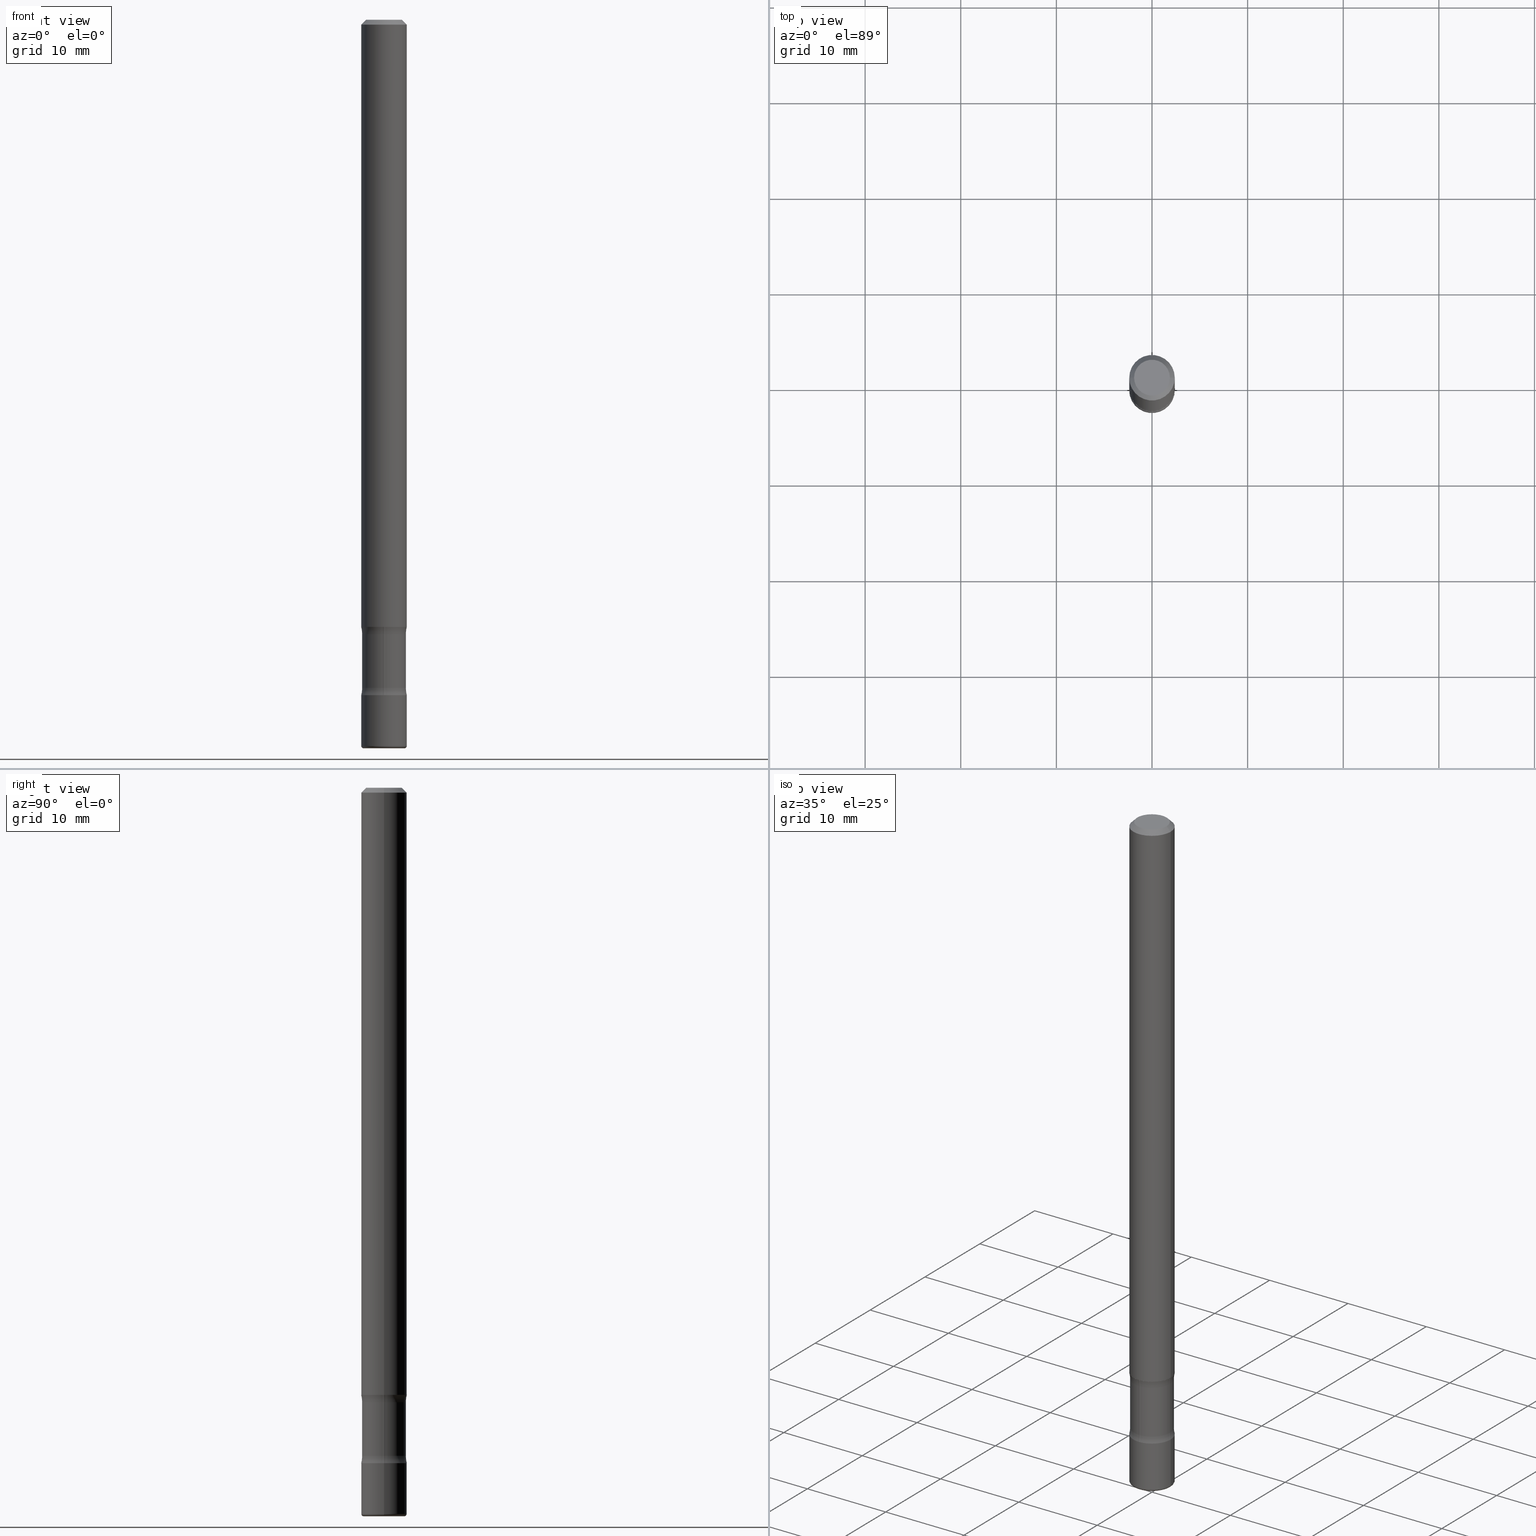
[diagram: canonical four-view strip — front | top / right | iso, engineering-drawing reading convention]
A machine part, canonical four-view strip (front | top / right | iso — engineering-drawing reading convention). The complete STEP part file that produces these views, byte-faithful:
ISO-10303-21;
HEADER;
FILE_DESCRIPTION (( 'STEP AP203' ),
    '1' );
FILE_NAME ('32816.STEP',
    '2023-03-11T07:03:43',
    ( '' ),
    ( '' ),
    'SwSTEP 2.0',
    'SolidWorks 2022',
    '' );
FILE_SCHEMA (( 'CONFIG_CONTROL_DESIGN' ));
ENDSEC;

DATA;
#1 = ORIENTED_EDGE ( 'NONE', *, *, #187, .F. ) ;
#2 = CARTESIAN_POINT ( 'NONE',  ( -0.08999999999999996891, -8.128941975895664340E-15, -2.530388114452858606 ) ) ;
#3 = DIRECTION ( 'NONE',  ( -6.982962677686265922E-15, -1.000000000000000000, 0.000000000000000000 ) ) ;
#4 = APPROVAL_DATE_TIME ( #57, #626 ) ;
#5 = ADVANCED_FACE ( 'NONE', ( #309 ), #383, .F. ) ;
#6 = ADVANCED_FACE ( 'NONE', ( #747 ), #697, .F. ) ;
#7 = DIRECTION ( 'NONE',  ( -1.000000000000000000, 6.982962677686265922E-15, -4.876176775795935793E-29 ) ) ;
#8 = CARTESIAN_POINT ( 'NONE',  ( 7.336406418555409790E-29, -1.047444401652943635E-14, -3.000000000000000444 ) ) ;
#9 = CIRCLE ( 'NONE', #421, 0.08999999999999996891 ) ;
#10 = VERTEX_POINT ( 'NONE', #379 ) ;
#11 = CIRCLE ( 'NONE', #302, 0.07437500000000001055 ) ;
#12 = LINE ( 'NONE', #251, #269 ) ;
#13 = CYLINDRICAL_SURFACE ( 'NONE', #571, 0.09375000000000002776 ) ;
#14 = PERSON_AND_ORGANIZATION_ROLE ( 'creator' ) ;
#15 = ORIENTED_EDGE ( 'NONE', *, *, #613, .F. ) ;
#16 = DIRECTION ( 'NONE',  ( 6.982962677686265922E-15, 1.000000000000000000, -5.827942386483760744E-15 ) ) ;
#17 = DIRECTION ( 'NONE',  ( 1.000000000000000000, -6.982962677686269077E-15, 0.000000000000000000 ) ) ;
#18 = EDGE_CURVE ( 'NONE', #607, #78, #72, .T. ) ;
#19 = AXIS2_PLACEMENT_3D ( 'NONE', #256, #446, #7 ) ;
#20 = AXIS2_PLACEMENT_3D ( 'NONE', #793, #287, #477 ) ;
#21 = FACE_OUTER_BOUND ( 'NONE', #30, .T. ) ;
#22 = DIRECTION ( 'NONE',  ( 1.000000000000000000, -6.982962677686266711E-15, 4.876176775795935232E-29 ) ) ;
#23 = ADVANCED_FACE ( 'NONE', ( #757 ), #540, .F. ) ;
#24 = FACE_OUTER_BOUND ( 'NONE', #563, .T. ) ;
#25 = CARTESIAN_POINT ( 'NONE',  ( 4.890937612370276662E-31, -6.982962677686296539E-17, -0.02000000000000001776 ) ) ;
#26 = CIRCLE ( 'NONE', #91, 0.09375000000000001388 ) ;
#27 = DIRECTION ( 'NONE',  ( 6.982962677686265133E-15, 1.000000000000000000, -6.070773319253918263E-15 ) ) ;
#28 = CIRCLE ( 'NONE', #519, 0.1250000000000000000 ) ;
#29 = AXIS2_PLACEMENT_3D ( 'NONE', #521, #585, #579 ) ;
#30 = EDGE_LOOP ( 'NONE', ( #314, #280, #183, #493 ) ) ;
#31 = PERSON_AND_ORGANIZATION_ROLE ( 'design_supplier' ) ;
#32 = ADVANCED_FACE ( 'NONE', ( #636 ), #181, .F. ) ;
#33 = ORIENTED_EDGE ( 'NONE', *, *, #499, .T. ) ;
#34 = COORDINATED_UNIVERSAL_TIME_OFFSET ( 5, 0, .BEHIND. ) ;
#35 =( NAMED_UNIT ( * ) SI_UNIT ( $, .STERADIAN. ) SOLID_ANGLE_UNIT ( ) );
#36 = DIRECTION ( 'NONE',  ( -2.445468806185136597E-29, 3.491481338843145583E-15, 1.000000000000000000 ) ) ;
#37 = DIRECTION ( 'NONE',  ( 6.982962677686265133E-15, 1.000000000000000000, -6.070773319253919052E-15 ) ) ;
#38 = CARTESIAN_POINT ( 'NONE',  ( 6.187985201436090676E-29, -8.834802881642648397E-15, -2.530388114452858606 ) ) ;
#39 = VERTEX_POINT ( 'NONE', #681 ) ;
#40 = AXIS2_PLACEMENT_3D ( 'NONE', #238, #434, #665 ) ;
#41 = VERTEX_POINT ( 'NONE', #120 ) ;
#42 = CONICAL_SURFACE ( 'NONE', #410, 0.09374999999999968081, 0.7853981633974480570 ) ;
#43 = DIRECTION ( 'NONE',  ( -2.445468806185136597E-29, 3.491481338843145583E-15, 1.000000000000000000 ) ) ;
#44 = CARTESIAN_POINT ( 'NONE',  ( 6.284666409918254957E-16, 0.08999999999999111489, -2.530388114452859050 ) ) ;
#45 = ORIENTED_EDGE ( 'NONE', *, *, #92, .F. ) ;
#46 = DIRECTION ( 'NONE',  ( 2.438088387897960049E-29, -3.491481338843145188E-15, -1.000000000000000000 ) ) ;
#47 = DIRECTION ( 'NONE',  ( -2.445468806185136597E-29, 3.491481338843145583E-15, 1.000000000000000000 ) ) ;
#48 = CARTESIAN_POINT ( 'NONE',  ( 1.036083544242599444E-27, -1.479252710587075397E-13, -42.36748150792652723 ) ) ;
#49 = VERTEX_POINT ( 'NONE', #168 ) ;
#50 = EDGE_CURVE ( 'NONE', #662, #345, #669, .T. ) ;
#51 = CARTESIAN_POINT ( 'NONE',  ( -0.07374999999999967693, 5.499083108677911763E-16, -3.723527850031178556E-30 ) ) ;
#52 = ORIENTED_EDGE ( 'NONE', *, *, #721, .T. ) ;
#53 = ORIENTED_EDGE ( 'NONE', *, *, #613, .T. ) ;
#54 = DIRECTION ( 'NONE',  ( -2.445468806185136877E-29, 3.491481338843145188E-15, 1.000000000000000000 ) ) ;
#55 = DIRECTION ( 'NONE',  ( -2.445468806185136597E-29, 3.491481338843145583E-15, 1.000000000000000000 ) ) ;
#56 = CIRCLE ( 'NONE', #686, 0.09375000000000001388 ) ;
#57 = DATE_AND_TIME ( #185, #268 ) ;
#58 = DIRECTION ( 'NONE',  ( 7.105427357601001859E-15, 1.000000000000000000, -3.491481338843145583E-15 ) ) ;
#59 = DIRECTION ( 'NONE',  ( 2.445468806185136597E-29, -3.491481338843145583E-15, -1.000000000000000000 ) ) ;
#60 = DIRECTION ( 'NONE',  ( 1.000000000000000000, -6.982962677686265922E-15, 4.876176775795935793E-29 ) ) ;
#61 = DIRECTION ( 'NONE',  ( 7.105427357601001859E-15, 1.000000000000000000, -3.491481338843145583E-15 ) ) ;
#62 = VECTOR ( 'NONE', #667, 39.37007874015748143 ) ;
#63 = CARTESIAN_POINT ( 'NONE',  ( 6.801337843762102328E-29, -9.710507899590557993E-15, -2.781200000000000561 ) ) ;
#64 = DIRECTION ( 'NONE',  ( 1.000000000000000000, 0.000000000000000000, 0.000000000000000000 ) ) ;
#65 = ORIENTED_EDGE ( 'NONE', *, *, #261, .F. ) ;
#66 = DIRECTION ( 'NONE',  ( -1.000000000000000000, 7.105427357601003436E-15, 0.000000000000000000 ) ) ;
#67 = CARTESIAN_POINT ( 'NONE',  ( 1.501336975702614357E-15, 0.2149999999999903932, -2.750811885547142843 ) ) ;
#68 = EDGE_CURVE ( 'NONE', #41, #39, #570, .T. ) ;
#69 = ORIENTED_EDGE ( 'NONE', *, *, #780, .T. ) ;
#70 = DIRECTION ( 'NONE',  ( -6.982962677686266711E-15, -1.000000000000000000, 3.491481338843145583E-15 ) ) ;
#71 = CARTESIAN_POINT ( 'NONE',  ( 7.336406418555409790E-29, -1.047444401652943635E-14, -3.000000000000000444 ) ) ;
#72 = CIRCLE ( 'NONE', #123, 0.1250000000000000000 ) ;
#73 = AXIS2_PLACEMENT_3D ( 'NONE', #8, #258, #517 ) ;
#74 = AXIS2_PLACEMENT_3D ( 'NONE', #334, #83, #587 ) ;
#75 = CARTESIAN_POINT ( 'NONE',  ( -1.475007069520816911E-15, -0.2150000000000087952, -2.530388114452858161 ) ) ;
#76 = DIRECTION ( 'NONE',  ( -1.000000000000000000, 6.982962677686265922E-15, -4.883557194083112340E-29 ) ) ;
#77 = DIRECTION ( 'NONE',  ( 1.000000000000000000, -6.982962677686261189E-15, 0.000000000000000000 ) ) ;
#78 = VERTEX_POINT ( 'NONE', #112 ) ;
#79 = ADVANCED_FACE ( 'NONE', ( #595 ), #214, .F. ) ;
#80 = AXIS2_PLACEMENT_3D ( 'NONE', #690, #61, #694 ) ;
#81 = VERTEX_POINT ( 'NONE', #44 ) ;
#82 = DIRECTION ( 'NONE',  ( -1.000000000000000000, 6.982962677686267499E-15, 0.000000000000000000 ) ) ;
#83 = DIRECTION ( 'NONE',  ( 2.450156014720728202E-29, -3.484768989440836268E-15, -1.000000000000000000 ) ) ;
#84 = EDGE_CURVE ( 'NONE', #205, #81, #158, .T. ) ;
#85 = VERTEX_POINT ( 'NONE', #500 ) ;
#86 = DATE_AND_TIME ( #788, #657 ) ;
#87 = CARTESIAN_POINT ( 'NONE',  ( 7.311951730493558245E-29, -1.043952920314100628E-14, -2.990000000000000213 ) ) ;
#88 = CARTESIAN_POINT ( 'NONE',  ( 2.011961467678875039E-17, -1.046537582866243864E-14, -2.997402767769051568 ) ) ;
#89 = EDGE_CURVE ( 'NONE', #85, #673, #316, .T. ) ;
#90 = VERTEX_POINT ( 'NONE', #671 ) ;
#91 = AXIS2_PLACEMENT_3D ( 'NONE', #664, #55, #237 ) ;
#92 = EDGE_CURVE ( 'NONE', #81, #604, #305, .T. ) ;
#93 = CIRCLE ( 'NONE', #20, 0.07374999999999967693 ) ;
#94 = ORIENTED_EDGE ( 'NONE', *, *, #771, .T. ) ;
#95 = ORIENTED_EDGE ( 'NONE', *, *, #590, .T. ) ;
#96 = LINE ( 'NONE', #417, #62 ) ;
#97 = PERSON_AND_ORGANIZATION_ROLE ( 'creator' ) ;
#98 = EDGE_LOOP ( 'NONE', ( #453, #169, #689, #69 ) ) ;
#99 = FACE_OUTER_BOUND ( 'NONE', #782, .T. ) ;
#100 = EDGE_LOOP ( 'NONE', ( #608, #650, #145, #359 ) ) ;
#101 = DIRECTION ( 'NONE',  ( 2.450156014720728202E-29, -3.484768989440836268E-15, -1.000000000000000000 ) ) ;
#102 = CARTESIAN_POINT ( 'NONE',  ( 6.113672015462842613E-29, -8.728703347107864943E-15, -2.500000000000000000 ) ) ;
#103 = EDGE_LOOP ( 'NONE', ( #640, #658, #367, #113 ) ) ;
#104 = DATE_AND_TIME ( #312, #751 ) ;
#105 = DIRECTION ( 'NONE',  ( 2.450156014720728202E-29, -3.484768989440836268E-15, -1.000000000000000000 ) ) ;
#106 = DIRECTION ( 'NONE',  ( 1.000000000000000000, -6.982962677686267499E-15, 0.000000000000000000 ) ) ;
#107 = ORIENTED_EDGE ( 'NONE', *, *, #734, .T. ) ;
#108 = DIRECTION ( 'NONE',  ( -1.000000000000000000, 6.982962677686265922E-15, -4.876176775795935793E-29 ) ) ;
#109 = VECTOR ( 'NONE', #307, 39.37007874015748143 ) ;
#110 = LOCAL_TIME ( 2, 3, 43.00000000000000000, #195 ) ;
#111 = EDGE_CURVE ( 'NONE', #412, #49, #148, .T. ) ;
#112 = CARTESIAN_POINT ( 'NONE',  ( -6.303082535451916913E-16, -0.09000000000000961398, -2.750811885547141955 ) ) ;
#113 = ORIENTED_EDGE ( 'NONE', *, *, #549, .F. ) ;
#114 = CARTESIAN_POINT ( 'NONE',  ( 0.07374999999999967693, -6.094815207017949365E-16, 3.931526600461590341E-30 ) ) ;
#115 = DIRECTION ( 'NONE',  ( -2.445468806185136597E-29, 3.491481338843145583E-15, 1.000000000000000000 ) ) ;
#116 = ORIENTED_EDGE ( 'NONE', *, *, #631, .F. ) ;
#117 = DIRECTION ( 'NONE',  ( 1.000000000000000000, -6.982962677686277755E-15, 0.000000000000000000 ) ) ;
#118 = DIRECTION ( 'NONE',  ( 6.982962677686265922E-15, 1.000000000000000000, -5.827942386483760744E-15 ) ) ;
#119 = CARTESIAN_POINT ( 'NONE',  ( 6.186809593825325615E-29, -8.836486418652693410E-15, -2.530388114452858606 ) ) ;
#120 = CARTESIAN_POINT ( 'NONE',  ( 0.09374999999999968081, -7.130013140679418184E-16, -0.02000000000000001776 ) ) ;
#121 = FACE_OUTER_BOUND ( 'NONE', #416, .T. ) ;
#122 = ADVANCED_FACE ( 'NONE', ( #562 ), #171, .F. ) ;
#123 = AXIS2_PLACEMENT_3D ( 'NONE', #736, #575, #558 ) ;
#124 = DIRECTION ( 'NONE',  ( 1.000000000000000000, -6.860497997771530774E-15, 4.840881082196246121E-29 ) ) ;
#125 = DIRECTION ( 'NONE',  ( 6.982962677686265922E-15, 1.000000000000000000, -3.484768989440836268E-15 ) ) ;
#126 = VECTOR ( 'NONE', #365, 39.37007874015748143 ) ;
#127 = ORIENTED_EDGE ( 'NONE', *, *, #526, .T. ) ;
#128 = AXIS2_PLACEMENT_3D ( 'NONE', #527, #464, #465 ) ;
#129 = DIRECTION ( 'NONE',  ( -2.438088387897960049E-29, 3.491481338843145188E-15, 1.000000000000000000 ) ) ;
#130 = DIRECTION ( 'NONE',  ( -2.445468806185136597E-29, 3.491481338843145583E-15, 1.000000000000000000 ) ) ;
#131 = ADVANCED_FACE ( 'NONE', ( #362 ), #551, .T. ) ;
#132 = CARTESIAN_POINT ( 'NONE',  ( 0.09375000000000005551, -1.109418195417409300E-14, -2.990000000000000213 ) ) ;
#133 = APPROVAL_ROLE ( '' ) ;
#134 = DIRECTION ( 'NONE',  ( -2.445468806185136597E-29, 3.491481338843145583E-15, 1.000000000000000000 ) ) ;
#135 = CARTESIAN_POINT ( 'NONE',  ( 6.113672015462842613E-29, -8.728703347107864943E-15, -2.500000000000000000 ) ) ;
#136 = CARTESIAN_POINT ( 'NONE',  ( -0.09374999999999984734, 6.661338147750928396E-16, -4.611501647113966288E-30 ) ) ;
#137 = VERTEX_POINT ( 'NONE', #347 ) ;
#138 = DIRECTION ( 'NONE',  ( -6.982962677686265922E-15, -1.000000000000000000, 0.000000000000000000 ) ) ;
#139 = AXIS2_PLACEMENT_3D ( 'NONE', #615, #785, #37 ) ;
#140 = EDGE_CURVE ( 'NONE', #239, #85, #508, .T. ) ;
#141 = CARTESIAN_POINT ( 'NONE',  ( 1.036083544242599444E-27, -1.479252710587075397E-13, -42.36748150792652723 ) ) ;
#142 = CIRCLE ( 'NONE', #73, 0.07437500000000001055 ) ;
#143 = CARTESIAN_POINT ( 'NONE',  ( 6.801337843762102328E-29, -9.710507899590557993E-15, -2.781200000000000561 ) ) ;
#144 = DIRECTION ( 'NONE',  ( 2.450156014720727922E-29, -3.484768989440836268E-15, -1.000000000000000000 ) ) ;
#145 = ORIENTED_EDGE ( 'NONE', *, *, #208, .F. ) ;
#146 = PLANE ( 'NONE',  #128 ) ;
#147 = ADVANCED_FACE ( 'NONE', ( #796 ), #769, .F. ) ;
#148 = CIRCLE ( 'NONE', #336, 0.09375000000000001388 ) ;
#149 = TOROIDAL_SURFACE ( 'NONE', #772, 0.2149999999999999967, 0.1250000000000000000 ) ;
#150 = ORIENTED_EDGE ( 'NONE', *, *, #518, .F. ) ;
#151 = DATE_AND_TIME ( #154, #174 ) ;
#152 = CARTESIAN_POINT ( 'NONE',  ( 0.08999999999999998279, -9.357169988099628315E-15, -2.500000000000000000 ) ) ;
#153 = ORIENTED_EDGE ( 'NONE', *, *, #485, .T. ) ;
#154 = CALENDAR_DATE ( 2023, 11, 3 ) ;
#155 = ORIENTED_EDGE ( 'NONE', *, *, #701, .T. ) ;
#156 = EDGE_CURVE ( 'NONE', #39, #41, #257, .T. ) ;
#157 = ORIENTED_EDGE ( 'NONE', *, *, #249, .T. ) ;
#158 = CIRCLE ( 'NONE', #644, 0.08999999999999996891 ) ;
#159 = ORIENTED_EDGE ( 'NONE', *, *, #68, .T. ) ;
#160 = VECTOR ( 'NONE', #270, 39.37007874015748143 ) ;
#161 = CARTESIAN_POINT ( 'NONE',  ( 6.187985201436090676E-29, -8.834802881642648397E-15, -2.530388114452858606 ) ) ;
#162 = AXIS2_PLACEMENT_3D ( 'NONE', #135, #511, #569 ) ;
#163 = ORIENTED_EDGE ( 'NONE', *, *, #264, .F. ) ;
#164 = PLANE ( 'NONE',  #202 ) ;
#165 = VERTEX_POINT ( 'NONE', #409 ) ;
#166 = ADVANCED_FACE ( 'NONE', ( #329 ), #761, .F. ) ;
#167 = DIRECTION ( 'NONE',  ( -2.445468806185136597E-29, 3.491481338843145583E-15, 1.000000000000000000 ) ) ;
#168 = CARTESIAN_POINT ( 'NONE',  ( 6.546527510331487394E-16, 0.09374999999999128475, -2.500000000000000000 ) ) ;
#169 = ORIENTED_EDGE ( 'NONE', *, *, #266, .F. ) ;
#170 = VERTEX_POINT ( 'NONE', #173 ) ;
#171 = CONICAL_SURFACE ( 'NONE', #617, 1127.411546571505596, 1.535889741755010807 ) ;
#172 = CIRCLE ( 'NONE', #474, 0.08999999999999999667 ) ;
#173 = CARTESIAN_POINT ( 'NONE',  ( 0.08999999999999996891, -9.463269522634413348E-15, -2.530388114452858606 ) ) ;
#174 = LOCAL_TIME ( 2, 3, 43.00000000000000000, #778 ) ;
#175 = DIRECTION ( 'NONE',  ( 1.000000000000000000, -6.982962677686272233E-15, 0.000000000000000000 ) ) ;
#176 = ORIENTED_EDGE ( 'NONE', *, *, #692, .F. ) ;
#177 = CYLINDRICAL_SURFACE ( 'NONE', #289, 0.09375000000000002776 ) ;
#178 = DIRECTION ( 'NONE',  ( 6.982962677686265133E-15, 1.000000000000000000, -6.070773319253919052E-15 ) ) ;
#179 = DIRECTION ( 'NONE',  ( 1.000000000000000000, -6.982962677686261189E-15, 0.000000000000000000 ) ) ;
#180 = EDGE_CURVE ( 'NONE', #170, #673, #9, .T. ) ;
#181 = PLANE ( 'NONE',  #354 ) ;
#182 = DIRECTION ( 'NONE',  ( -2.445468806185136597E-29, 3.491481338843145583E-15, 1.000000000000000000 ) ) ;
#183 = ORIENTED_EDGE ( 'NONE', *, *, #717, .T. ) ;
#184 = DIRECTION ( 'NONE',  ( 1.000000000000000000, -6.982962677686272233E-15, 0.000000000000000000 ) ) ;
#185 = CALENDAR_DATE ( 2023, 11, 3 ) ;
#186 = ORIENTED_EDGE ( 'NONE', *, *, #89, .T. ) ;
#187 = EDGE_CURVE ( 'NONE', #49, #412, #528, .T. ) ;
#188 = AXIS2_PLACEMENT_3D ( 'NONE', #556, #616, #106 ) ;
#189 = DIRECTION ( 'NONE',  ( -2.445468806185136597E-29, 3.491481338843145583E-15, 1.000000000000000000 ) ) ;
#190 = AXIS2_PLACEMENT_3D ( 'NONE', #578, #76, #3 ) ;
#191 = APPROVAL_STATUS ( 'not_yet_approved' ) ;
#192 = DIRECTION ( 'NONE',  ( 1.000000000000000000, -6.982962677686264344E-15, 4.883557194083111780E-29 ) ) ;
#193 = CARTESIAN_POINT ( 'NONE',  ( -6.431716872910129461E-16, -0.09375000000000968670, -2.781200000000000561 ) ) ;
#194 = CARTESIAN_POINT ( 'NONE',  ( -6.174448197993643227E-16, -0.09000000000001044664, -2.997402767769051124 ) ) ;
#195 = COORDINATED_UNIVERSAL_TIME_OFFSET ( 5, 0, .BEHIND. ) ;
#196 = ORIENTED_EDGE ( 'NONE', *, *, #499, .F. ) ;
#197 = DIRECTION ( 'NONE',  ( 1.000000000000000000, -6.982962677686275388E-15, 0.000000000000000000 ) ) ;
#198 = CARTESIAN_POINT ( 'NONE',  ( 0.2149999999999999689, -1.033613985734519511E-14, -2.530388114452858606 ) ) ;
#199 = EDGE_CURVE ( 'NONE', #165, #260, #726, .T. ) ;
#200 = EDGE_LOOP ( 'NONE', ( #515, #510, #652, #420 ) ) ;
#201 = DIRECTION ( 'NONE',  ( 1.000000000000000000, -6.982962677686265922E-15, 4.876176775795935793E-29 ) ) ;
#202 = AXIS2_PLACEMENT_3D ( 'NONE', #232, #346, #482 ) ;
#203 = ADVANCED_FACE ( 'NONE', ( #415 ), #423, .T. ) ;
#204 = AXIS2_PLACEMENT_3D ( 'NONE', #639, #371, #695 ) ;
#205 = VERTEX_POINT ( 'NONE', #547 ) ;
#206 = CARTESIAN_POINT ( 'NONE',  ( 0.2149999999999999967, -1.110574534075832283E-14, -2.750811885547142399 ) ) ;
#207 = DIRECTION ( 'NONE',  ( -2.445468806185136597E-29, 3.491481338843145583E-15, 1.000000000000000000 ) ) ;
#208 = EDGE_CURVE ( 'NONE', #675, #743, #26, .T. ) ;
#209 = EDGE_CURVE ( 'NONE', #414, #39, #539, .T. ) ;
#210 = MANIFOLD_SOLID_BREP ( 'Body-Move/Copy2[4]', #325 ) ;
#211 = ORIENTED_EDGE ( 'NONE', *, *, #424, .F. ) ;
#212 = ORIENTED_EDGE ( 'NONE', *, *, #224, .T. ) ;
#213 = ADVANCED_FACE ( 'NONE', ( #357 ), #164, .T. ) ;
#214 = TOROIDAL_SURFACE ( 'NONE', #473, 0.2149999999999999689, 0.1250000000000000278 ) ;
#215 = AXIS2_PLACEMENT_3D ( 'NONE', #198, #573, #405 ) ;
#216 = ORIENTED_EDGE ( 'NONE', *, *, #364, .F. ) ;
#217 = PRODUCT_DEFINITION_FORMATION_WITH_SPECIFIED_SOURCE ( 'ANY', '', #441, .NOT_KNOWN. ) ;
#218 = CC_DESIGN_PERSON_AND_ORGANIZATION_ASSIGNMENT ( #248, #14, ( #255 ) ) ;
#219 = ORIENTED_EDGE ( 'NONE', *, *, #84, .T. ) ;
#220 = ORIENTED_EDGE ( 'NONE', *, *, #507, .F. ) ;
#221 = CARTESIAN_POINT ( 'NONE',  ( 0.000000000000000000, 0.000000000000000000, 0.000000000000000000 ) ) ;
#222 = DIRECTION ( 'NONE',  ( 6.982962677686265922E-15, 1.000000000000000000, -3.484768989440835873E-15 ) ) ;
#223 = ORIENTED_EDGE ( 'NONE', *, *, #249, .F. ) ;
#224 = EDGE_CURVE ( 'NONE', #137, #10, #713, .T. ) ;
#225 = ORIENTED_EDGE ( 'NONE', *, *, #692, .T. ) ;
#226 = AXIS2_PLACEMENT_3D ( 'NONE', #691, #317, #755 ) ;
#227 = AXIS2_PLACEMENT_3D ( 'NONE', #555, #745, #64 ) ;
#228 = APPROVAL_PERSON_ORGANIZATION ( #468, #759, #712 ) ;
#229 = VECTOR ( 'NONE', #531, 39.37007874015748143 ) ;
#230 = ORIENTED_EDGE ( 'NONE', *, *, #382, .T. ) ;
#231 = ADVANCED_FACE ( 'NONE', ( #479 ), #42, .T. ) ;
#232 = CARTESIAN_POINT ( 'NONE',  ( 6.801337843762102328E-29, -9.710507899590557993E-15, -2.781200000000000561 ) ) ;
#233 = CARTESIAN_POINT ( 'NONE',  ( 6.113672015462842613E-29, -8.728703347107864943E-15, -2.500000000000000000 ) ) ;
#234 = ORIENTED_EDGE ( 'NONE', *, *, #199, .F. ) ;
#235 = ADVANCED_FACE ( 'NONE', ( #715 ), #460, .F. ) ;
#236 = FACE_OUTER_BOUND ( 'NONE', #306, .T. ) ;
#237 = DIRECTION ( 'NONE',  ( 1.000000000000000000, -6.982962677686261189E-15, 0.000000000000000000 ) ) ;
#238 = CARTESIAN_POINT ( 'NONE',  ( 0.000000000000000000, 0.000000000000000000, 0.000000000000000000 ) ) ;
#239 = VERTEX_POINT ( 'NONE', #609 ) ;
#240 = DIRECTION ( 'NONE',  ( 1.000000000000000000, -6.982962677686266711E-15, 4.876176775795936353E-29 ) ) ;
#241 = VERTEX_POINT ( 'NONE', #752 ) ;
#242 = DIRECTION ( 'NONE',  ( 2.450156014720728202E-29, -3.484768989440836268E-15, -1.000000000000000000 ) ) ;
#243 = AXIS2_PLACEMENT_3D ( 'NONE', #798, #343, #222 ) ;
#244 = CIRCLE ( 'NONE', #619, 0.07374999999999967693 ) ;
#245 = DIRECTION ( 'NONE',  ( -2.438088387897960049E-29, 3.491481338843145188E-15, 1.000000000000000000 ) ) ;
#246 = DIRECTION ( 'NONE',  ( 1.000000000000000000, -6.982962677686269866E-15, 4.883557194083114022E-29 ) ) ;
#247 = DESIGN_CONTEXT ( 'detailed design', #295, 'design' ) ;
#248 = PERSON_AND_ORGANIZATION ( #448, #544 ) ;
#249 = EDGE_CURVE ( 'NONE', #81, #49, #541, .T. ) ;
#250 = VERTEX_POINT ( 'NONE', #684 ) ;
#251 = CARTESIAN_POINT ( 'NONE',  ( 0.09374999999999968081, -7.130013140679418184E-16, -0.02000000000000001776 ) ) ;
#252 = DIRECTION ( 'NONE',  ( -2.445468806185136597E-29, 3.491481338843145583E-15, 1.000000000000000000 ) ) ;
#253 = CARTESIAN_POINT ( 'NONE',  ( 6.727024657788854265E-29, -9.604408365055774538E-15, -2.750811885547142399 ) ) ;
#254 = APPROVAL_STATUS ( 'not_yet_approved' ) ;
#255 = PRODUCT_DEFINITION ( 'UNKNOWN', '', #217, #247 ) ;
#256 = CARTESIAN_POINT ( 'NONE',  ( 6.801337843762102328E-29, -9.710507899590557993E-15, -2.781200000000000561 ) ) ;
#257 = CIRCLE ( 'NONE', #335, 0.09374999999999968081 ) ;
#258 = DIRECTION ( 'NONE',  ( -2.445468806185136597E-29, 3.491481338843145583E-15, 1.000000000000000000 ) ) ;
#259 = AXIS2_PLACEMENT_3D ( 'NONE', #629, #252, #310 ) ;
#260 = VERTEX_POINT ( 'NONE', #132 ) ;
#261 = EDGE_CURVE ( 'NONE', #90, #487, #172, .T. ) ;
#262 = CYLINDRICAL_SURFACE ( 'NONE', #204, 0.08999999999999998279 ) ;
#263 = CARTESIAN_POINT ( 'NONE',  ( 6.727024657788854265E-29, -9.604408365055774538E-15, -2.750811885547142399 ) ) ;
#264 = EDGE_CURVE ( 'NONE', #330, #535, #11, .T. ) ;
#265 = DIRECTION ( 'NONE',  ( 6.982962677686265922E-15, 1.000000000000000000, -5.827942386483760744E-15 ) ) ;
#266 = EDGE_CURVE ( 'NONE', #363, #607, #56, .T. ) ;
#267 = AXIS2_PLACEMENT_3D ( 'NONE', #408, #655, #178 ) ;
#268 = LOCAL_TIME ( 2, 3, 43.00000000000000000, #740 ) ;
#269 = VECTOR ( 'NONE', #488, 39.37007874015748143 ) ;
#270 = DIRECTION ( 'NONE',  ( 0.9993908270190957621, -6.978169709227539121E-15, -0.03489949670250019204 ) ) ;
#271 = DIRECTION ( 'NONE',  ( 1.000000000000000000, -6.982962677686262766E-15, 0.000000000000000000 ) ) ;
#272 = AXIS2_PLACEMENT_3D ( 'NONE', #723, #105, #118 ) ;
#273 = CIRCLE ( 'NONE', #748, 0.08375000000000000500 ) ;
#274 = DIRECTION ( 'NONE',  ( -2.445468806185136597E-29, 3.491481338843145583E-15, 1.000000000000000000 ) ) ;
#275 = EDGE_CURVE ( 'NONE', #363, #604, #28, .T. ) ;
#276 = DIRECTION ( 'NONE',  ( -2.445468806185136597E-29, 3.491481338843145583E-15, 1.000000000000000000 ) ) ;
#277 = EDGE_LOOP ( 'NONE', ( #116, #696, #765, #288 ) ) ;
#278 = APPLICATION_CONTEXT ( 'configuration controlled 3d designs of mechanical parts and assemblies' ) ;
#279 = PERSON_AND_ORGANIZATION ( #448, #544 ) ;
#280 = ORIENTED_EDGE ( 'NONE', *, *, #576, .T. ) ;
#281 = DIRECTION ( 'NONE',  ( 1.000000000000000000, -6.982962677686264344E-15, 4.883557194083111780E-29 ) ) ;
#282 = CC_DESIGN_PERSON_AND_ORGANIZATION_ASSIGNMENT ( #341, #31, ( #217 ) ) ;
#283 = ADVANCED_FACE ( 'NONE', ( #497 ), #386, .F. ) ;
#284 = CARTESIAN_POINT ( 'NONE',  ( 6.284666409918370327E-16, 0.08999999999998951894, -2.997402767769052012 ) ) ;
#285 = ORIENTED_EDGE ( 'NONE', *, *, #413, .T. ) ;
#286 = AXIS2_PLACEMENT_3D ( 'NONE', #504, #439, #384 ) ;
#287 = DIRECTION ( 'NONE',  ( -2.445468806185136597E-29, 3.491481338843145583E-15, 1.000000000000000000 ) ) ;
#288 = ORIENTED_EDGE ( 'NONE', *, *, #156, .T. ) ;
#289 = AXIS2_PLACEMENT_3D ( 'NONE', #427, #182, #682 ) ;
#290 = ADVANCED_FACE ( 'NONE', ( #567 ), #262, .T. ) ;
#291 = EDGE_LOOP ( 'NONE', ( #348, #463 ) ) ;
#292 = FACE_OUTER_BOUND ( 'NONE', #763, .T. ) ;
#293 = DIRECTION ( 'NONE',  ( -1.000000000000000000, 6.982962677686267499E-15, 0.000000000000000000 ) ) ;
#294 = DIRECTION ( 'NONE',  ( -1.000000000000000000, 6.982962677686266711E-15, 0.000000000000000000 ) ) ;
#295 = APPLICATION_CONTEXT ( 'configuration controlled 3d designs of mechanical parts and assemblies' ) ;
#296 = ORIENTED_EDGE ( 'NONE', *, *, #721, .F. ) ;
#297 = DIRECTION ( 'NONE',  ( 1.000000000000000000, -6.982962677686270655E-15, 0.000000000000000000 ) ) ;
#298 = CARTESIAN_POINT ( 'NONE',  ( 6.187985201436090676E-29, -8.834802881642648397E-15, -2.530388114452858606 ) ) ;
#299 = ORIENTED_EDGE ( 'NONE', *, *, #322, .F. ) ;
#300 = AXIS2_PLACEMENT_3D ( 'NONE', #102, #542, #175 ) ;
#301 = EDGE_LOOP ( 'NONE', ( #534, #373, #524, #442 ) ) ;
#302 = AXIS2_PLACEMENT_3D ( 'NONE', #71, #700, #445 ) ;
#303 = CARTESIAN_POINT ( 'NONE',  ( -0.08999999999999999667, -9.004646993843575514E-15, -2.750811885547142399 ) ) ;
#304 = EDGE_CURVE ( 'NONE', #345, #39, #381, .T. ) ;
#305 = LINE ( 'NONE', #284, #397 ) ;
#306 = EDGE_LOOP ( 'NONE', ( #660, #525, #212, #483 ) ) ;
#307 = DIRECTION ( 'NONE',  ( -2.445468806185136877E-29, 3.491481338843145188E-15, 1.000000000000000000 ) ) ;
#308 = DIRECTION ( 'NONE',  ( 1.000000000000000000, -6.982962677686269866E-15, 4.883557194083114022E-29 ) ) ;
#309 = FACE_OUTER_BOUND ( 'NONE', #618, .T. ) ;
#310 = DIRECTION ( 'NONE',  ( 1.000000000000000000, -6.982962677686261189E-15, 0.000000000000000000 ) ) ;
#311 = CARTESIAN_POINT ( 'NONE',  ( 6.546527510331553462E-16, 0.09374999999999027167, -2.781200000000000561 ) ) ;
#312 = CALENDAR_DATE ( 2023, 11, 3 ) ;
#313 = EDGE_CURVE ( 'NONE', #345, #662, #698, .T. ) ;
#314 = ORIENTED_EDGE ( 'NONE', *, *, #553, .F. ) ;
#315 = LINE ( 'NONE', #516, #126 ) ;
#316 = CIRCLE ( 'NONE', #746, 0.1250000000000000278 ) ;
#317 = DIRECTION ( 'NONE',  ( -2.438088387897960049E-29, 3.491481338843145188E-15, 1.000000000000000000 ) ) ;
#318 = AXIS2_PLACEMENT_3D ( 'NONE', #630, #739, #184 ) ;
#319 = ORIENTED_EDGE ( 'NONE', *, *, #199, .T. ) ;
#320 = CARTESIAN_POINT ( 'NONE',  ( 0.000000000000000000, 0.000000000000000000, 0.000000000000000000 ) ) ;
#321 = FACE_OUTER_BOUND ( 'NONE', #602, .T. ) ;
#322 = EDGE_CURVE ( 'NONE', #535, #330, #142, .T. ) ;
#323 = DIRECTION ( 'NONE',  ( 1.000000000000000000, -6.982962677686277755E-15, 0.000000000000000000 ) ) ;
#324 = DIRECTION ( 'NONE',  ( -2.445468806185136877E-29, 3.491481338843145188E-15, 1.000000000000000000 ) ) ;
#325 = CLOSED_SHELL ( 'NONE', ( #203, #437, #235, #79, #283, #760, #166, #402 ) ) ;
#326 = CIRCLE ( 'NONE', #215, 0.1250000000000000278 ) ;
#327 =( GEOMETRIC_REPRESENTATION_CONTEXT ( 3 ) GLOBAL_UNCERTAINTY_ASSIGNED_CONTEXT ( ( #472 ) ) GLOBAL_UNIT_ASSIGNED_CONTEXT ( ( #779, #469, #35 ) ) REPRESENTATION_CONTEXT ( 'NONE', 'WORKASPACE' ) );
#328 = CC_DESIGN_PERSON_AND_ORGANIZATION_ASSIGNMENT ( #574, #679, ( #441 ) ) ;
#329 = FACE_OUTER_BOUND ( 'NONE', #98, .T. ) ;
#330 = VERTEX_POINT ( 'NONE', #432 ) ;
#331 = CARTESIAN_POINT ( 'NONE',  ( -0.09375000000000002776, 6.661338147750941215E-16, -4.611501647113975397E-30 ) ) ;
#332 = FACE_OUTER_BOUND ( 'NONE', #716, .T. ) ;
#333 = ADVANCED_FACE ( 'NONE', ( #620 ), #13, .T. ) ;
#334 = CARTESIAN_POINT ( 'NONE',  ( 6.726882222359411338E-29, -9.604612340697659966E-15, -2.750811885547142399 ) ) ;
#335 = AXIS2_PLACEMENT_3D ( 'NONE', #610, #276, #532 ) ;
#336 = AXIS2_PLACEMENT_3D ( 'NONE', #735, #680, #606 ) ;
#337 = EDGE_LOOP ( 'NONE', ( #792, #65, #672, #677 ) ) ;
#338 = CIRCLE ( 'NONE', #476, 0.09375000000000001388 ) ;
#339 = ORIENTED_EDGE ( 'NONE', *, *, #382, .F. ) ;
#340 = CC_DESIGN_PERSON_AND_ORGANIZATION_ASSIGNMENT ( #279, #597, ( #422 ) ) ;
#341 = PERSON_AND_ORGANIZATION ( #448, #544 ) ;
#342 = ORIENTED_EDGE ( 'NONE', *, *, #84, .F. ) ;
#343 = DIRECTION ( 'NONE',  ( 2.450156014720728202E-29, -3.484768989440836268E-15, -1.000000000000000000 ) ) ;
#344 = EDGE_CURVE ( 'NONE', #250, #241, #489, .T. ) ;
#345 = VERTEX_POINT ( 'NONE', #376 ) ;
#346 = DIRECTION ( 'NONE',  ( 2.438088387897960049E-29, -3.491481338843145188E-15, -1.000000000000000000 ) ) ;
#347 = CARTESIAN_POINT ( 'NONE',  ( -0.09374999999999998612, -9.044374084815464068E-15, -2.781200000000000561 ) ) ;
#348 = ORIENTED_EDGE ( 'NONE', *, *, #50, .F. ) ;
#349 = SECURITY_CLASSIFICATION_LEVEL ( 'unclassified' ) ;
#350 = DIRECTION ( 'NONE',  ( 6.982962677686265133E-15, 1.000000000000000000, -6.070773319253920630E-15 ) ) ;
#351 = ADVANCED_FACE ( 'NONE', ( #513 ), #529, .F. ) ;
#352 = DIRECTION ( 'NONE',  ( -1.000000000000000000, 7.105427357601001859E-15, 0.000000000000000000 ) ) ;
#353 = ORIENTED_EDGE ( 'NONE', *, *, #364, .T. ) ;
#354 = AXIS2_PLACEMENT_3D ( 'NONE', #804, #245, #431 ) ;
#355 = LENGTH_MEASURE_WITH_UNIT ( LENGTH_MEASURE( 0.02539999999999999897 ), #598 );
#356 = CC_DESIGN_APPROVAL ( #759, ( #422 ) ) ;
#357 = FACE_OUTER_BOUND ( 'NONE', #406, .T. ) ;
#358 = DIRECTION ( 'NONE',  ( 2.450156014720728202E-29, -3.484768989440836268E-15, -1.000000000000000000 ) ) ;
#359 = ORIENTED_EDGE ( 'NONE', *, *, #590, .F. ) ;
#360 = CARTESIAN_POINT ( 'NONE',  ( 6.801337843762102328E-29, -9.710507899590557993E-15, -2.781200000000000561 ) ) ;
#361 = CARTESIAN_POINT ( 'NONE',  ( 6.801337843762102328E-29, -9.710507899590557993E-15, -2.781200000000000561 ) ) ;
#362 = FACE_OUTER_BOUND ( 'NONE', #301, .T. ) ;
#363 = VERTEX_POINT ( 'NONE', #311 ) ;
#364 = EDGE_CURVE ( 'NONE', #205, #78, #806, .T. ) ;
#365 = DIRECTION ( 'NONE',  ( -2.445468806185136877E-29, 3.491481338843145188E-15, 1.000000000000000000 ) ) ;
#366 = PERSON_AND_ORGANIZATION ( #448, #544 ) ;
#367 = ORIENTED_EDGE ( 'NONE', *, *, #68, .F. ) ;
#368 = CARTESIAN_POINT ( 'NONE',  ( 6.113672015462842613E-29, -8.728703347107864943E-15, -2.500000000000000000 ) ) ;
#369 = CIRCLE ( 'NONE', #286, 0.09375000000000002776 ) ;
#370 = DIRECTION ( 'NONE',  ( 6.860497997771531562E-15, 1.000000000000000000, 0.000000000000000000 ) ) ;
#371 = DIRECTION ( 'NONE',  ( -2.445468806185136597E-29, 3.491481338843145583E-15, 1.000000000000000000 ) ) ;
#372 = AXIS2_PLACEMENT_3D ( 'NONE', #206, #775, #271 ) ;
#373 = ORIENTED_EDGE ( 'NONE', *, *, #313, .T. ) ;
#374 = CARTESIAN_POINT ( 'NONE',  ( -0.2149999999999999967, -8.076741483171560149E-15, -2.750811885547142399 ) ) ;
#375 = CARTESIAN_POINT ( 'NONE',  ( 6.727024657788854265E-29, -9.604408365055774538E-15, -2.750811885547142399 ) ) ;
#376 = CARTESIAN_POINT ( 'NONE',  ( -0.09375000000000001388, -3.733132672167263096E-15, -2.500000000000000000 ) ) ;
#377 = ADVANCED_FACE ( 'NONE', ( #443, #625 ), #509, .F. ) ;
#378 = APPROVAL_ROLE ( '' ) ;
#379 = CARTESIAN_POINT ( 'NONE',  ( 0.09374999999999998612, -1.036516065062364471E-14, -2.781200000000000561 ) ) ;
#380 = PRODUCT_DEFINITION_SHAPE ( 'NONE', 'NONE',  #255 ) ;
#381 = LINE ( 'NONE', #136, #109 ) ;
#382 = EDGE_CURVE ( 'NONE', #239, #170, #326, .T. ) ;
#383 = PLANE ( 'NONE',  #19 ) ;
#384 = DIRECTION ( 'NONE',  ( 1.000000000000000000, -6.982962677686260400E-15, 0.000000000000000000 ) ) ;
#385 = AXIS2_PLACEMENT_3D ( 'NONE', #550, #43, #794 ) ;
#386 = PLANE ( 'NONE',  #762 ) ;
#387 = AXIS2_PLACEMENT_3D ( 'NONE', #161, #101, #719 ) ;
#388 = DIRECTION ( 'NONE',  ( -1.000000000000000000, 6.982962677686266711E-15, 0.000000000000000000 ) ) ;
#389 = CC_DESIGN_SECURITY_CLASSIFICATION ( #422, ( #217 ) ) ;
#390 = AXIS2_PLACEMENT_3D ( 'NONE', #391, #455, #27 ) ;
#391 = CARTESIAN_POINT ( 'NONE',  ( 6.726882222359411338E-29, -9.604612340697659966E-15, -2.750811885547142399 ) ) ;
#392 = DIRECTION ( 'NONE',  ( -2.445468806185136597E-29, 3.491481338843145583E-15, 1.000000000000000000 ) ) ;
#393 = ORIENTED_EDGE ( 'NONE', *, *, #413, .F. ) ;
#394 = DIRECTION ( 'NONE',  ( 2.445468806185136597E-29, -3.491481338843145583E-15, -1.000000000000000000 ) ) ;
#395 = DIRECTION ( 'NONE',  ( -2.445468806185136877E-29, 3.491481338843145188E-15, 1.000000000000000000 ) ) ;
#396 = DIRECTION ( 'NONE',  ( -2.445468806185136597E-29, 3.491481338843145583E-15, 1.000000000000000000 ) ) ;
#397 = VECTOR ( 'NONE', #358, 39.37007874015748143 ) ;
#398 = AXIS2_PLACEMENT_3D ( 'NONE', #789, #46, #108 ) ;
#399 = ORIENTED_EDGE ( 'NONE', *, *, #594, .T. ) ;
#400 = APPROVAL_STATUS ( 'not_yet_approved' ) ;
#401 = CARTESIAN_POINT ( 'NONE',  ( 6.113672015462842613E-29, -8.728703347107864943E-15, -2.500000000000000000 ) ) ;
#402 = ADVANCED_FACE ( 'NONE', ( #332 ), #768, .T. ) ;
#403 = SHAPE_DEFINITION_REPRESENTATION ( #380, #520 ) ;
#404 = CARTESIAN_POINT ( 'NONE',  ( -0.09375000000000001388, -9.408884736590688213E-15, -2.781200000000000561 ) ) ;
#405 = DIRECTION ( 'NONE',  ( 1.000000000000000000, -6.982962677686261189E-15, 0.000000000000000000 ) ) ;
#406 = EDGE_LOOP ( 'NONE', ( #583, #622 ) ) ;
#407 = CARTESIAN_POINT ( 'NONE',  ( 7.311951730493558245E-29, -1.043952920314100628E-14, -2.990000000000000213 ) ) ;
#408 = CARTESIAN_POINT ( 'NONE',  ( 7.331068355610711932E-29, -1.046392460014342655E-14, -2.997402767769051568 ) ) ;
#409 = CARTESIAN_POINT ( 'NONE',  ( -0.09375000000000005551, -9.773395388365912358E-15, -2.990000000000000213 ) ) ;
#410 = AXIS2_PLACEMENT_3D ( 'NONE', #429, #471, #293 ) ;
#411 = APPROVAL ( #254, 'UNSPECIFIED' ) ;
#412 = VERTEX_POINT ( 'NONE', #593 ) ;
#413 = EDGE_CURVE ( 'NONE', #481, #414, #93, .T. ) ;
#414 = VERTEX_POINT ( 'NONE', #51 ) ;
#415 = FACE_OUTER_BOUND ( 'NONE', #435, .T. ) ;
#416 = EDGE_LOOP ( 'NONE', ( #632, #53 ) ) ;
#417 = CARTESIAN_POINT ( 'NONE',  ( -2.011961467664215169E-17, -1.046537582866243864E-14, -2.997402767769051568 ) ) ;
#418 = CARTESIAN_POINT ( 'NONE',  ( 6.727024657788854265E-29, -9.604408365055774538E-15, -2.750811885547142399 ) ) ;
#419 = DIRECTION ( 'NONE',  ( 6.982962677686265133E-15, 1.000000000000000000, -6.070773319253920630E-15 ) ) ;
#420 = ORIENTED_EDGE ( 'NONE', *, *, #717, .F. ) ;
#421 = AXIS2_PLACEMENT_3D ( 'NONE', #725, #167, #297 ) ;
#422 = SECURITY_CLASSIFICATION ( '', '', #349 ) ;
#423 = CYLINDRICAL_SURFACE ( 'NONE', #139, 0.08999999999999998279 ) ;
#424 = EDGE_CURVE ( 'NONE', #81, #205, #559, .T. ) ;
#425 = CIRCLE ( 'NONE', #637, 0.1250000000000000278 ) ;
#426 = EDGE_LOOP ( 'NONE', ( #176, #211, #157, #648 ) ) ;
#427 = CARTESIAN_POINT ( 'NONE',  ( 0.000000000000000000, 0.000000000000000000, 0.000000000000000000 ) ) ;
#428 = DIRECTION ( 'NONE',  ( 2.450156014720728202E-29, -3.484768989440836268E-15, -1.000000000000000000 ) ) ;
#429 = CARTESIAN_POINT ( 'NONE',  ( 4.890937612370276662E-31, -6.982962677686296539E-17, -0.02000000000000001776 ) ) ;
#430 = DIRECTION ( 'NONE',  ( 2.450156014720728202E-29, -3.484768989440836268E-15, -1.000000000000000000 ) ) ;
#431 = DIRECTION ( 'NONE',  ( 1.000000000000000000, -6.982962677686265922E-15, 4.876176775795935793E-29 ) ) ;
#432 = CARTESIAN_POINT ( 'NONE',  ( -0.07437499999999978850, -9.955086167376522081E-15, -3.000000000000000444 ) ) ;
#433 = DATE_AND_TIME ( #498, #110 ) ;
#434 = DIRECTION ( 'NONE',  ( -2.445468806185136597E-29, 3.491481338843145583E-15, 1.000000000000000000 ) ) ;
#435 = EDGE_LOOP ( 'NONE', ( #786, #353, #611, #45 ) ) ;
#436 = AXIS2_PLACEMENT_3D ( 'NONE', #141, #59, #388 ) ;
#437 = ADVANCED_FACE ( 'NONE', ( #292 ), #670, .F. ) ;
#438 = AXIS2_PLACEMENT_3D ( 'NONE', #360, #242, #16 ) ;
#439 = DIRECTION ( 'NONE',  ( -2.445468806185136597E-29, 3.491481338843145583E-15, 1.000000000000000000 ) ) ;
#440 = DIRECTION ( 'NONE',  ( -2.445468806185136597E-29, 3.491481338843145583E-15, 1.000000000000000000 ) ) ;
#441 = PRODUCT ( '32816', '32816', '', ( #645 ) ) ;
#442 = ORIENTED_EDGE ( 'NONE', *, *, #156, .F. ) ;
#443 = FACE_OUTER_BOUND ( 'NONE', #797, .T. ) ;
#444 = EDGE_LOOP ( 'NONE', ( #342, #225, #475, #223 ) ) ;
#445 = DIRECTION ( 'NONE',  ( 1.000000000000000000, -6.982962677686267499E-15, 0.000000000000000000 ) ) ;
#446 = DIRECTION ( 'NONE',  ( 2.438088387897960049E-29, -3.491481338843145188E-15, -1.000000000000000000 ) ) ;
#447 = AXIS2_PLACEMENT_3D ( 'NONE', #233, #115, #728 ) ;
#448 = PERSON ( 'UNSPECIFIED', 'UNSPECIFIED', 'UNSPECIFIED', ('UNSPECIFIED'), ('UNSPECIFIED'), ('UNSPECIFIED') ) ;
#449 = CIRCLE ( 'NONE', #656, 0.08999999999999999667 ) ;
#450 = CARTESIAN_POINT ( 'NONE',  ( 7.336406418555409790E-29, -1.047444401652943635E-14, -3.000000000000000444 ) ) ;
#451 = AXIS2_PLACEMENT_3D ( 'NONE', #407, #537, #668 ) ;
#452 = ADVANCED_FACE ( 'NONE', ( #99 ), #605, .F. ) ;
#453 = ORIENTED_EDGE ( 'NONE', *, *, #18, .F. ) ;
#454 = CONICAL_SURFACE ( 'NONE', #659, 0.09374999999999968081, 0.7853981633974480570 ) ;
#455 = DIRECTION ( 'NONE',  ( 2.450156014720728202E-29, -3.484768989440836268E-15, -1.000000000000000000 ) ) ;
#456 = LINE ( 'NONE', #88, #160 ) ;
#457 = ORIENTED_EDGE ( 'NONE', *, *, #180, .T. ) ;
#458 = ADVANCED_FACE ( 'NONE', ( #236 ), #149, .F. ) ;
#459 = CLOSED_SHELL ( 'NONE', ( #122, #643, #800, #377, #709, #333, #5, #23 ) ) ;
#460 = TOROIDAL_SURFACE ( 'NONE', #387, 0.2149999999999999689, 0.1250000000000000278 ) ;
#461 = MANIFOLD_SOLID_BREP ( 'Body-Move/Copy2[2]', #705 ) ;
#462 = CC_DESIGN_APPROVAL ( #626, ( #255 ) ) ;
#463 = ORIENTED_EDGE ( 'NONE', *, *, #313, .F. ) ;
#464 = DIRECTION ( 'NONE',  ( -2.450156014720727922E-29, 3.484768989440836268E-15, 1.000000000000000000 ) ) ;
#465 = DIRECTION ( 'NONE',  ( -6.982962677686265922E-15, -1.000000000000000000, 3.484768989440836268E-15 ) ) ;
#466 = ORIENTED_EDGE ( 'NONE', *, *, #501, .T. ) ;
#467 = EDGE_LOOP ( 'NONE', ( #15, #186, #107, #339 ) ) ;
#468 = PERSON_AND_ORGANIZATION ( #448, #544 ) ;
#469 =( NAMED_UNIT ( * ) PLANE_ANGLE_UNIT ( ) SI_UNIT ( $, .RADIAN. ) );
#470 = CARTESIAN_POINT ( 'NONE',  ( 6.727024657788854265E-29, -9.604408365055774538E-15, -2.750811885547142399 ) ) ;
#471 = DIRECTION ( 'NONE',  ( 2.445468806185136597E-29, -3.491481338843145583E-15, -1.000000000000000000 ) ) ;
#472 = UNCERTAINTY_MEASURE_WITH_UNIT (LENGTH_MEASURE( 1.000000000000000082E-05 ), #779, 'distance_accuracy_value', 'NONE');
#473 = AXIS2_PLACEMENT_3D ( 'NONE', #38, #790, #492 ) ;
#474 = AXIS2_PLACEMENT_3D ( 'NONE', #253, #392, #17 ) ;
#475 = ORIENTED_EDGE ( 'NONE', *, *, #111, .T. ) ;
#476 = AXIS2_PLACEMENT_3D ( 'NONE', #143, #638, #77 ) ;
#477 = DIRECTION ( 'NONE',  ( 1.000000000000000000, -6.982962677686266711E-15, 4.876176775795935232E-29 ) ) ;
#478 = VECTOR ( 'NONE', #395, 39.37007874015748143 ) ;
#479 = FACE_OUTER_BOUND ( 'NONE', #277, .T. ) ;
#480 = TOROIDAL_SURFACE ( 'NONE', #584, 0.08375000000000000500, 0.01000000000000009041 ) ;
#481 = VERTEX_POINT ( 'NONE', #114 ) ;
#482 = DIRECTION ( 'NONE',  ( -1.000000000000000000, 6.982962677686265922E-15, -4.876176775795935793E-29 ) ) ;
#483 = ORIENTED_EDGE ( 'NONE', *, *, #742, .F. ) ;
#484 = FACE_OUTER_BOUND ( 'NONE', #103, .T. ) ;
#485 = EDGE_CURVE ( 'NONE', #607, #363, #706, .T. ) ;
#486 = DIRECTION ( 'NONE',  ( 6.982962677686265922E-15, 1.000000000000000000, -3.484768989440835873E-15 ) ) ;
#487 = VERTEX_POINT ( 'NONE', #303 ) ;
#488 = DIRECTION ( 'NONE',  ( 0.7071067811865473507, -7.319954787623256045E-15, -0.7071067811865476838 ) ) ;
#489 = CIRCLE ( 'NONE', #588, 0.08375000000000000500 ) ;
#490 = ORIENTED_EDGE ( 'NONE', *, *, #501, .F. ) ;
#491 = AXIS2_PLACEMENT_3D ( 'NONE', #401, #703, #649 ) ;
#492 = DIRECTION ( 'NONE',  ( 6.982962677686265922E-15, 1.000000000000000000, -3.484768989440835873E-15 ) ) ;
#493 = ORIENTED_EDGE ( 'NONE', *, *, #734, .F. ) ;
#494 = DIRECTION ( 'NONE',  ( -2.445468806185136597E-29, 3.491481338843145583E-15, 1.000000000000000000 ) ) ;
#495 = ORIENTED_EDGE ( 'NONE', *, *, #89, .F. ) ;
#496 = CARTESIAN_POINT ( 'NONE',  ( 0.08375000000000000500, -1.102435232739723285E-14, -2.990000000000000213 ) ) ;
#497 = FACE_OUTER_BOUND ( 'NONE', #711, .T. ) ;
#498 = CALENDAR_DATE ( 2023, 11, 3 ) ;
#499 = EDGE_CURVE ( 'NONE', #241, #165, #634, .T. ) ;
#500 = CARTESIAN_POINT ( 'NONE',  ( -0.09375000000000002776, -8.062569532332771018E-15, -2.500000000000000000 ) ) ;
#501 = EDGE_CURVE ( 'NONE', #743, #675, #647, .T. ) ;
#502 = EDGE_LOOP ( 'NONE', ( #738, #319, #95, #490 ) ) ;
#503 = CARTESIAN_POINT ( 'NONE',  ( 0.09375000000000001388, -1.036516065062364471E-14, -2.781200000000000561 ) ) ;
#504 = CARTESIAN_POINT ( 'NONE',  ( 7.311951730493558245E-29, -1.043952920314100628E-14, -2.990000000000000213 ) ) ;
#505 = CARTESIAN_POINT ( 'NONE',  ( 6.113672015462842613E-29, -8.728703347107864943E-15, -2.500000000000000000 ) ) ;
#506 = ORIENTED_EDGE ( 'NONE', *, *, #208, .T. ) ;
#507 = EDGE_CURVE ( 'NONE', #260, #165, #369, .T. ) ;
#508 = CIRCLE ( 'NONE', #300, 0.09375000000000001388 ) ;
#509 = PLANE ( 'NONE',  #226 ) ;
#510 = ORIENTED_EDGE ( 'NONE', *, *, #553, .T. ) ;
#511 = DIRECTION ( 'NONE',  ( -2.445468806185136597E-29, 3.491481338843145583E-15, 1.000000000000000000 ) ) ;
#512 = CC_DESIGN_DATE_AND_TIME_ASSIGNMENT ( #151, #545, ( #422 ) ) ;
#513 = FACE_OUTER_BOUND ( 'NONE', #543, .T. ) ;
#514 = DATE_TIME_ROLE ( 'creation_date' ) ;
#515 = ORIENTED_EDGE ( 'NONE', *, *, #261, .T. ) ;
#516 = CARTESIAN_POINT ( 'NONE',  ( 0.09374999999999984734, -6.546527510330864194E-16, 4.571415727308682799E-30 ) ) ;
#517 = DIRECTION ( 'NONE',  ( 1.000000000000000000, -6.982962677686267499E-15, 0.000000000000000000 ) ) ;
#518 = EDGE_CURVE ( 'NONE', #241, #250, #273, .T. ) ;
#519 = AXIS2_PLACEMENT_3D ( 'NONE', #67, #635, #138 ) ;
#520 = ADVANCED_BREP_SHAPE_REPRESENTATION ( '32816', ( #753, #461, #722, #210, #227 ), #327 ) ;
#521 = CARTESIAN_POINT ( 'NONE',  ( 6.187985201436090676E-29, -8.834802881642648397E-15, -2.530388114452858606 ) ) ;
#522 = ORIENTED_EDGE ( 'NONE', *, *, #209, .F. ) ;
#523 = CC_DESIGN_PERSON_AND_ORGANIZATION_ASSIGNMENT ( #589, #97, ( #217 ) ) ;
#524 = ORIENTED_EDGE ( 'NONE', *, *, #549, .T. ) ;
#525 = ORIENTED_EDGE ( 'NONE', *, *, #683, .T. ) ;
#526 = EDGE_CURVE ( 'NONE', #250, #260, #727, .T. ) ;
#527 = CARTESIAN_POINT ( 'NONE',  ( 6.801337843762102328E-29, -9.710507899590557993E-15, -2.781200000000000561 ) ) ;
#528 = CIRCLE ( 'NONE', #272, 0.09375000000000001388 ) ;
#529 = TOROIDAL_SURFACE ( 'NONE', #580, 0.2149999999999999689, 0.1250000000000000278 ) ;
#530 = TOROIDAL_SURFACE ( 'NONE', #451, 0.08375000000000000500, 0.01000000000000009041 ) ;
#531 = DIRECTION ( 'NONE',  ( -2.445468806185136877E-29, 3.491481338843145188E-15, 1.000000000000000000 ) ) ;
#532 = DIRECTION ( 'NONE',  ( 1.000000000000000000, -6.982962677686267499E-15, 0.000000000000000000 ) ) ;
#533 = ORIENTED_EDGE ( 'NONE', *, *, #111, .F. ) ;
#534 = ORIENTED_EDGE ( 'NONE', *, *, #304, .F. ) ;
#535 = VERTEX_POINT ( 'NONE', #577 ) ;
#536 = EDGE_LOOP ( 'NONE', ( #773, #52, #163 ) ) ;
#537 = DIRECTION ( 'NONE',  ( -2.445468806185136597E-29, 3.491481338843145583E-15, 1.000000000000000000 ) ) ;
#538 = ORIENTED_EDGE ( 'NONE', *, *, #526, .F. ) ;
#539 = LINE ( 'NONE', #674, #557 ) ;
#540 = CONICAL_SURFACE ( 'NONE', #436, 1127.411546571505596, 1.535889741755010807 ) ;
#541 = CIRCLE ( 'NONE', #190, 0.1250000000000000278 ) ;
#542 = DIRECTION ( 'NONE',  ( -2.445468806185136597E-29, 3.491481338843145583E-15, 1.000000000000000000 ) ) ;
#543 = EDGE_LOOP ( 'NONE', ( #495, #729, #230, #457 ) ) ;
#544 = ORGANIZATION ( 'UNSPECIFIED', 'UNSPECIFIED', '' ) ;
#545 = DATE_TIME_ROLE ( 'classification_date' ) ;
#546 = ORIENTED_EDGE ( 'NONE', *, *, #344, .F. ) ;
#547 = CARTESIAN_POINT ( 'NONE',  ( -6.303082535451979035E-16, -0.09000000000000880906, -2.530388114452858161 ) ) ;
#548 = ORIENTED_EDGE ( 'NONE', *, *, #275, .F. ) ;
#549 = EDGE_CURVE ( 'NONE', #662, #41, #315, .T. ) ;
#550 = CARTESIAN_POINT ( 'NONE',  ( 7.311951730493558245E-29, -1.043952920314100628E-14, -2.990000000000000213 ) ) ;
#551 = CYLINDRICAL_SURFACE ( 'NONE', #40, 0.09374999999999984734 ) ;
#552 = ORIENTED_EDGE ( 'NONE', *, *, #18, .T. ) ;
#553 = EDGE_CURVE ( 'NONE', #487, #673, #572, .T. ) ;
#554 = DIRECTION ( 'NONE',  ( 2.450156014720728202E-29, -3.484768989440836268E-15, -1.000000000000000000 ) ) ;
#555 = CARTESIAN_POINT ( 'NONE',  ( 0.000000000000000000, 0.000000000000000000, 0.000000000000000000 ) ) ;
#556 = CARTESIAN_POINT ( 'NONE',  ( 4.890937612370276662E-31, -6.982962677686296539E-17, -0.02000000000000001776 ) ) ;
#557 = VECTOR ( 'NONE', #678, 39.37007874015748143 ) ;
#558 = DIRECTION ( 'NONE',  ( 6.860497997771530774E-15, 1.000000000000000000, 0.000000000000000000 ) ) ;
#559 = CIRCLE ( 'NONE', #714, 0.08999999999999996891 ) ;
#560 = CIRCLE ( 'NONE', #29, 0.08999999999999996891 ) ;
#561 = CARTESIAN_POINT ( 'NONE',  ( 7.336406418555409790E-29, -1.047444401652943635E-14, -3.000000000000000444 ) ) ;
#562 = FACE_OUTER_BOUND ( 'NONE', #536, .T. ) ;
#563 = EDGE_LOOP ( 'NONE', ( #685, #153 ) ) ;
#564 = CARTESIAN_POINT ( 'NONE',  ( 0.09375000000000001388, -9.383356098140953236E-15, -2.500000000000000000 ) ) ;
#565 = CARTESIAN_POINT ( 'NONE',  ( 6.187985201436090676E-29, -8.834802881642648397E-15, -2.530388114452858606 ) ) ;
#566 = ORIENTED_EDGE ( 'NONE', *, *, #322, .T. ) ;
#567 = FACE_OUTER_BOUND ( 'NONE', #200, .T. ) ;
#568 = ORIENTED_EDGE ( 'NONE', *, *, #631, .T. ) ;
#569 = DIRECTION ( 'NONE',  ( 1.000000000000000000, -6.982962677686272233E-15, 0.000000000000000000 ) ) ;
#570 = CIRCLE ( 'NONE', #188, 0.09374999999999968081 ) ;
#571 = AXIS2_PLACEMENT_3D ( 'NONE', #320, #758, #201 ) ;
#572 = LINE ( 'NONE', #614, #802 ) ;
#573 = DIRECTION ( 'NONE',  ( -6.982962677686266711E-15, -1.000000000000000000, 3.491481338843145583E-15 ) ) ;
#574 = PERSON_AND_ORGANIZATION ( #448, #544 ) ;
#575 = DIRECTION ( 'NONE',  ( 1.000000000000000000, -6.860497997771530774E-15, 4.840881082196246121E-29 ) ) ;
#576 = EDGE_CURVE ( 'NONE', #487, #90, #449, .T. ) ;
#577 = CARTESIAN_POINT ( 'NONE',  ( 0.07437499999999978850, -1.098469355511369297E-14, -3.000000000000000444 ) ) ;
#578 = CARTESIAN_POINT ( 'NONE',  ( 1.501336975702608834E-15, 0.2149999999999911149, -2.530388114452859050 ) ) ;
#579 = DIRECTION ( 'NONE',  ( 1.000000000000000000, -6.982962677686270655E-15, 0.000000000000000000 ) ) ;
#580 = AXIS2_PLACEMENT_3D ( 'NONE', #565, #440, #246 ) ;
#581 = ADVANCED_FACE ( 'NONE', ( #624 ), #454, .T. ) ;
#582 = CC_DESIGN_APPROVAL ( #411, ( #217 ) ) ;
#583 = ORIENTED_EDGE ( 'NONE', *, *, #781, .F. ) ;
#584 = AXIS2_PLACEMENT_3D ( 'NONE', #87, #274, #702 ) ;
#585 = DIRECTION ( 'NONE',  ( -2.445468806185136597E-29, 3.491481338843145583E-15, 1.000000000000000000 ) ) ;
#586 = APPROVAL_DATE_TIME ( #86, #759 ) ;
#587 = DIRECTION ( 'NONE',  ( 6.982962677686265133E-15, 1.000000000000000000, -6.070773319253918263E-15 ) ) ;
#588 = AXIS2_PLACEMENT_3D ( 'NONE', #450, #189, #323 ) ;
#589 = PERSON_AND_ORGANIZATION ( #448, #544 ) ;
#590 = EDGE_CURVE ( 'NONE', #260, #675, #767, .T. ) ;
#591 = CIRCLE ( 'NONE', #162, 0.09375000000000001388 ) ;
#592 = ORIENTED_EDGE ( 'NONE', *, *, #264, .T. ) ;
#593 = CARTESIAN_POINT ( 'NONE',  ( -6.431716872910200459E-16, -0.09375000000000877076, -2.500000000000000000 ) ) ;
#594 = EDGE_CURVE ( 'NONE', #754, #330, #96, .T. ) ;
#595 = FACE_OUTER_BOUND ( 'NONE', #426, .T. ) ;
#596 = ORIENTED_EDGE ( 'NONE', *, *, #518, .T. ) ;
#597 = PERSON_AND_ORGANIZATION_ROLE ( 'classification_officer' ) ;
#598 =( LENGTH_UNIT ( ) NAMED_UNIT ( * ) SI_UNIT ( $, .METRE. ) );
#599 = AXIS2_PLACEMENT_3D ( 'NONE', #298, #207, #308 ) ;
#600 = ADVANCED_FACE ( 'NONE', ( #484 ), #777, .T. ) ;
#601 = AXIS2_PLACEMENT_3D ( 'NONE', #496, #70, #197 ) ;
#602 = EDGE_LOOP ( 'NONE', ( #791, #33, #220, #538 ) ) ;
#603 = APPROVAL_PERSON_ORGANIZATION ( #366, #626, #133 ) ;
#604 = VERTEX_POINT ( 'NONE', #749 ) ;
#605 = PLANE ( 'NONE',  #398 ) ;
#606 = DIRECTION ( 'NONE',  ( 6.982962677686265922E-15, 1.000000000000000000, -5.827942386483760744E-15 ) ) ;
#607 = VERTEX_POINT ( 'NONE', #193 ) ;
#608 = ORIENTED_EDGE ( 'NONE', *, *, #507, .T. ) ;
#609 = CARTESIAN_POINT ( 'NONE',  ( 0.09375000000000002776, -9.383356098140950080E-15, -2.500000000000000000 ) ) ;
#610 = CARTESIAN_POINT ( 'NONE',  ( 4.890937612370276662E-31, -6.982962677686296539E-17, -0.02000000000000001776 ) ) ;
#611 = ORIENTED_EDGE ( 'NONE', *, *, #780, .F. ) ;
#612 = PRODUCT_RELATED_PRODUCT_CATEGORY ( 'detail', '', ( #441 ) ) ;
#613 = EDGE_CURVE ( 'NONE', #85, #239, #591, .T. ) ;
#614 = CARTESIAN_POINT ( 'NONE',  ( -0.08999999999999998279, -8.089214884923774207E-15, -2.500000000000000000 ) ) ;
#615 = CARTESIAN_POINT ( 'NONE',  ( 7.331068355610711932E-29, -1.046392460014342655E-14, -2.997402767769051568 ) ) ;
#616 = DIRECTION ( 'NONE',  ( -2.445468806185136597E-29, 3.491481338843145583E-15, 1.000000000000000000 ) ) ;
#617 = AXIS2_PLACEMENT_3D ( 'NONE', #48, #741, #294 ) ;
#618 = EDGE_LOOP ( 'NONE', ( #506, #466 ) ) ;
#619 = AXIS2_PLACEMENT_3D ( 'NONE', #708, #396, #22 ) ;
#620 = FACE_OUTER_BOUND ( 'NONE', #502, .T. ) ;
#621 = AXIS2_PLACEMENT_3D ( 'NONE', #221, #494, #240 ) ;
#622 = ORIENTED_EDGE ( 'NONE', *, *, #224, .F. ) ;
#623 = DIRECTION ( 'NONE',  ( 7.105427357601001859E-15, 1.000000000000000000, -3.491481338843145583E-15 ) ) ;
#624 = FACE_OUTER_BOUND ( 'NONE', #704, .T. ) ;
#625 = FACE_BOUND ( 'NONE', #724, .T. ) ;
#626 = APPROVAL ( #191, 'UNSPECIFIED' ) ;
#627 = COORDINATED_UNIVERSAL_TIME_OFFSET ( 5, 0, .BEHIND. ) ;
#628 = ORIENTED_EDGE ( 'NONE', *, *, #701, .F. ) ;
#629 = CARTESIAN_POINT ( 'NONE',  ( 6.801337843762102328E-29, -9.710507899590557993E-15, -2.781200000000000561 ) ) ;
#630 = CARTESIAN_POINT ( 'NONE',  ( 6.113672015462842613E-29, -8.728703347107864943E-15, -2.500000000000000000 ) ) ;
#631 = EDGE_CURVE ( 'NONE', #481, #41, #12, .T. ) ;
#632 = ORIENTED_EDGE ( 'NONE', *, *, #140, .T. ) ;
#633 = AXIS2_PLACEMENT_3D ( 'NONE', #418, #554, #486 ) ;
#634 = CIRCLE ( 'NONE', #80, 0.01000000000000008174 ) ;
#635 = DIRECTION ( 'NONE',  ( -1.000000000000000000, 6.982962677686265922E-15, -4.883557194083112340E-29 ) ) ;
#636 = FACE_OUTER_BOUND ( 'NONE', #291, .T. ) ;
#637 = AXIS2_PLACEMENT_3D ( 'NONE', #75, #124, #370 ) ;
#638 = DIRECTION ( 'NONE',  ( -2.445468806185136597E-29, 3.491481338843145583E-15, 1.000000000000000000 ) ) ;
#639 = CARTESIAN_POINT ( 'NONE',  ( 6.113672015462842613E-29, -8.728703347107864943E-15, -2.500000000000000000 ) ) ;
#640 = ORIENTED_EDGE ( 'NONE', *, *, #50, .T. ) ;
#641 = CARTESIAN_POINT ( 'NONE',  ( 0.09375000000000002776, -6.546527510330876027E-16, 4.571415727308691207E-30 ) ) ;
#642 = LINE ( 'NONE', #331, #229 ) ;
#643 = ADVANCED_FACE ( 'NONE', ( #731 ), #177, .T. ) ;
#644 = AXIS2_PLACEMENT_3D ( 'NONE', #119, #430, #419 ) ;
#645 = MECHANICAL_CONTEXT ( 'NONE', #278, 'mechanical' ) ;
#646 = LINE ( 'NONE', #152, #730 ) ;
#647 = CIRCLE ( 'NONE', #259, 0.09375000000000001388 ) ;
#648 = ORIENTED_EDGE ( 'NONE', *, *, #187, .T. ) ;
#649 = DIRECTION ( 'NONE',  ( 1.000000000000000000, -6.982962677686258822E-15, 0.000000000000000000 ) ) ;
#650 = ORIENTED_EDGE ( 'NONE', *, *, #710, .T. ) ;
#651 = ADVANCED_FACE ( 'NONE', ( #121 ), #676, .T. ) ;
#652 = ORIENTED_EDGE ( 'NONE', *, *, #180, .F. ) ;
#653 = APPROVAL_DATE_TIME ( #104, #411 ) ;
#654 = AXIS2_PLACEMENT_3D ( 'NONE', #361, #47, #179 ) ;
#655 = DIRECTION ( 'NONE',  ( 2.450156014720728202E-29, -3.484768989440836268E-15, -1.000000000000000000 ) ) ;
#656 = AXIS2_PLACEMENT_3D ( 'NONE', #375, #805, #737 ) ;
#657 = LOCAL_TIME ( 2, 3, 43.00000000000000000, #34 ) ;
#658 = ORIENTED_EDGE ( 'NONE', *, *, #304, .T. ) ;
#659 = AXIS2_PLACEMENT_3D ( 'NONE', #25, #394, #82 ) ;
#660 = ORIENTED_EDGE ( 'NONE', *, *, #576, .F. ) ;
#661 = CC_DESIGN_DATE_AND_TIME_ASSIGNMENT ( #433, #514, ( #255 ) ) ;
#662 = VERTEX_POINT ( 'NONE', #564 ) ;
#663 = CARTESIAN_POINT ( 'NONE',  ( 6.186809593825325615E-29, -8.836486418652693410E-15, -2.530388114452858606 ) ) ;
#664 = CARTESIAN_POINT ( 'NONE',  ( 6.801337843762102328E-29, -9.710507899590557993E-15, -2.781200000000000561 ) ) ;
#665 = DIRECTION ( 'NONE',  ( 1.000000000000000000, -6.982962677686266711E-15, 4.876176775795936353E-29 ) ) ;
#666 = ORIENTED_EDGE ( 'NONE', *, *, #485, .F. ) ;
#667 = DIRECTION ( 'NONE',  ( -0.9993908270190957621, 6.856857904024558837E-15, -0.03489949670250019204 ) ) ;
#668 = DIRECTION ( 'NONE',  ( 1.000000000000000000, -6.982962677686255667E-15, 4.883557194083109538E-29 ) ) ;
#669 = CIRCLE ( 'NONE', #447, 0.09375000000000001388 ) ;
#670 = TOROIDAL_SURFACE ( 'NONE', #243, 0.2149999999999999967, 0.1250000000000000000 ) ;
#671 = CARTESIAN_POINT ( 'NONE',  ( 0.08999999999999999667, -1.023287500604753949E-14, -2.750811885547142399 ) ) ;
#672 = ORIENTED_EDGE ( 'NONE', *, *, #742, .T. ) ;
#673 = VERTEX_POINT ( 'NONE', #2 ) ;
#674 = CARTESIAN_POINT ( 'NONE',  ( -0.09374999999999968081, 5.848231242562223324E-16, -0.02000000000000001776 ) ) ;
#675 = VERTEX_POINT ( 'NONE', #503 ) ;
#676 = PLANE ( 'NONE',  #707 ) ;
#677 = ORIENTED_EDGE ( 'NONE', *, *, #781, .T. ) ;
#678 = DIRECTION ( 'NONE',  ( -0.7071067811865473507, 2.468850131082255088E-15, -0.7071067811865476838 ) ) ;
#679 = PERSON_AND_ORGANIZATION_ROLE ( 'design_owner' ) ;
#680 = DIRECTION ( 'NONE',  ( 2.450156014720728202E-29, -3.484768989440836268E-15, -1.000000000000000000 ) ) ;
#681 = CARTESIAN_POINT ( 'NONE',  ( -0.09374999999999968081, 5.848231242562223324E-16, -0.02000000000000001776 ) ) ;
#682 = DIRECTION ( 'NONE',  ( 1.000000000000000000, -6.982962677686265922E-15, 4.876176775795935793E-29 ) ) ;
#683 = EDGE_CURVE ( 'NONE', #487, #137, #787, .T. ) ;
#684 = CARTESIAN_POINT ( 'NONE',  ( 0.08375000000000000500, -1.105926714078566293E-14, -3.000000000000000444 ) ) ;
#685 = ORIENTED_EDGE ( 'NONE', *, *, #266, .T. ) ;
#686 = AXIS2_PLACEMENT_3D ( 'NONE', #63, #744, #265 ) ;
#687 = DIRECTION ( 'NONE',  ( 2.450156014720728202E-29, -3.484768989440836268E-15, -1.000000000000000000 ) ) ;
#688 = APPLICATION_PROTOCOL_DEFINITION ( 'international standard', 'config_control_design', 1994, #295 ) ;
#689 = ORIENTED_EDGE ( 'NONE', *, *, #275, .T. ) ;
#690 = CARTESIAN_POINT ( 'NONE',  ( -0.08375000000000000500, -9.844449661941924017E-15, -2.990000000000000213 ) ) ;
#691 = CARTESIAN_POINT ( 'NONE',  ( 7.336406418555409790E-29, -1.047444401652943635E-14, -3.000000000000000444 ) ) ;
#692 = EDGE_CURVE ( 'NONE', #205, #412, #425, .T. ) ;
#693 = EDGE_LOOP ( 'NONE', ( #296, #399, #299 ) ) ;
#694 = DIRECTION ( 'NONE',  ( -1.000000000000000000, 7.105427357601061812E-15, 0.000000000000000000 ) ) ;
#695 = DIRECTION ( 'NONE',  ( 1.000000000000000000, -6.982962677686258822E-15, 0.000000000000000000 ) ) ;
#696 = ORIENTED_EDGE ( 'NONE', *, *, #771, .F. ) ;
#697 = TOROIDAL_SURFACE ( 'NONE', #783, 0.2149999999999999967, 0.1250000000000000000 ) ;
#698 = CIRCLE ( 'NONE', #318, 0.09375000000000001388 ) ;
#699 = CIRCLE ( 'NONE', #74, 0.08999999999999999667 ) ;
#700 = DIRECTION ( 'NONE',  ( -2.445468806185136597E-29, 3.491481338843145583E-15, 1.000000000000000000 ) ) ;
#701 = EDGE_CURVE ( 'NONE', #78, #604, #733, .T. ) ;
#702 = DIRECTION ( 'NONE',  ( 1.000000000000000000, -6.982962677686255667E-15, 4.883557194083109538E-29 ) ) ;
#703 = DIRECTION ( 'NONE',  ( -2.445468806185136597E-29, 3.491481338843145583E-15, 1.000000000000000000 ) ) ;
#704 = EDGE_LOOP ( 'NONE', ( #393, #568, #159, #522 ) ) ;
#705 = CLOSED_SHELL ( 'NONE', ( #600, #581, #231, #452, #32, #131 ) ) ;
#706 = CIRCLE ( 'NONE', #438, 0.09375000000000001388 ) ;
#707 = AXIS2_PLACEMENT_3D ( 'NONE', #368, #129, #60 ) ;
#708 = CARTESIAN_POINT ( 'NONE',  ( 0.000000000000000000, 0.000000000000000000, 0.000000000000000000 ) ) ;
#709 = ADVANCED_FACE ( 'NONE', ( #764 ), #480, .T. ) ;
#710 = EDGE_CURVE ( 'NONE', #165, #743, #642, .T. ) ;
#711 = EDGE_LOOP ( 'NONE', ( #1, #533 ) ) ;
#712 = APPROVAL_ROLE ( '' ) ;
#713 = CIRCLE ( 'NONE', #654, 0.09375000000000001388 ) ;
#714 = AXIS2_PLACEMENT_3D ( 'NONE', #663, #428, #350 ) ;
#715 = FACE_OUTER_BOUND ( 'NONE', #444, .T. ) ;
#716 = EDGE_LOOP ( 'NONE', ( #216, #219, #720, #628 ) ) ;
#717 = EDGE_CURVE ( 'NONE', #90, #170, #646, .T. ) ;
#718 = AXIS2_PLACEMENT_3D ( 'NONE', #374, #623, #66 ) ;
#719 = DIRECTION ( 'NONE',  ( 6.982962677686265922E-15, 1.000000000000000000, -3.484768989440835873E-15 ) ) ;
#720 = ORIENTED_EDGE ( 'NONE', *, *, #92, .T. ) ;
#721 = EDGE_CURVE ( 'NONE', #754, #535, #456, .T. ) ;
#722 = MANIFOLD_SOLID_BREP ( 'Body-Move/Copy2[3]', #801 ) ;
#723 = CARTESIAN_POINT ( 'NONE',  ( 6.112353972422633504E-29, -8.730590859759793805E-15, -2.500000000000000000 ) ) ;
#724 = EDGE_LOOP ( 'NONE', ( #592, #566 ) ) ;
#725 = CARTESIAN_POINT ( 'NONE',  ( 6.187985201436090676E-29, -8.834802881642648397E-15, -2.530388114452858606 ) ) ;
#726 = CIRCLE ( 'NONE', #385, 0.09375000000000002776 ) ;
#727 = CIRCLE ( 'NONE', #601, 0.01000000000000008174 ) ;
#728 = DIRECTION ( 'NONE',  ( 1.000000000000000000, -6.982962677686272233E-15, 0.000000000000000000 ) ) ;
#729 = ORIENTED_EDGE ( 'NONE', *, *, #140, .F. ) ;
#730 = VECTOR ( 'NONE', #324, 39.37007874015748143 ) ;
#731 = FACE_OUTER_BOUND ( 'NONE', #100, .T. ) ;
#732 = APPROVAL_PERSON_ORGANIZATION ( #756, #411, #378 ) ;
#733 = CIRCLE ( 'NONE', #390, 0.08999999999999999667 ) ;
#734 = EDGE_CURVE ( 'NONE', #673, #170, #560, .T. ) ;
#735 = CARTESIAN_POINT ( 'NONE',  ( 6.112353972422633504E-29, -8.730590859759793805E-15, -2.500000000000000000 ) ) ;
#736 = CARTESIAN_POINT ( 'NONE',  ( -1.475007069520811980E-15, -0.2150000000000096001, -2.750811885547141955 ) ) ;
#737 = DIRECTION ( 'NONE',  ( 1.000000000000000000, -6.982962677686269077E-15, 0.000000000000000000 ) ) ;
#738 = ORIENTED_EDGE ( 'NONE', *, *, #710, .F. ) ;
#739 = DIRECTION ( 'NONE',  ( -2.445468806185136597E-29, 3.491481338843145583E-15, 1.000000000000000000 ) ) ;
#740 = COORDINATED_UNIVERSAL_TIME_OFFSET ( 5, 0, .BEHIND. ) ;
#741 = DIRECTION ( 'NONE',  ( 2.445468806185136597E-29, -3.491481338843145583E-15, -1.000000000000000000 ) ) ;
#742 = EDGE_CURVE ( 'NONE', #90, #10, #774, .T. ) ;
#743 = VERTEX_POINT ( 'NONE', #404 ) ;
#744 = DIRECTION ( 'NONE',  ( 2.450156014720728202E-29, -3.484768989440836268E-15, -1.000000000000000000 ) ) ;
#745 = DIRECTION ( 'NONE',  ( 0.000000000000000000, 0.000000000000000000, 1.000000000000000000 ) ) ;
#746 = AXIS2_PLACEMENT_3D ( 'NONE', #803, #58, #352 ) ;
#747 = FACE_OUTER_BOUND ( 'NONE', #337, .T. ) ;
#748 = AXIS2_PLACEMENT_3D ( 'NONE', #561, #130, #117 ) ;
#749 = CARTESIAN_POINT ( 'NONE',  ( 6.284666409918311163E-16, 0.08999999999999037936, -2.750811885547142843 ) ) ;
#750 = ADVANCED_FACE ( 'NONE', ( #21 ), #766, .T. ) ;
#751 = LOCAL_TIME ( 2, 3, 43.00000000000000000, #627 ) ;
#752 = CARTESIAN_POINT ( 'NONE',  ( -0.08375000000000000500, -9.826379931848133223E-15, -3.000000000000000444 ) ) ;
#753 = MANIFOLD_SOLID_BREP ( 'Body-Move/Copy2[1]', #459 ) ;
#754 = VERTEX_POINT ( 'NONE', #770 ) ;
#755 = DIRECTION ( 'NONE',  ( 1.000000000000000000, -6.982962677686265922E-15, 4.876176775795935793E-29 ) ) ;
#756 = PERSON_AND_ORGANIZATION ( #448, #544 ) ;
#757 = FACE_OUTER_BOUND ( 'NONE', #693, .T. ) ;
#758 = DIRECTION ( 'NONE',  ( -2.445468806185136597E-29, 3.491481338843145583E-15, 1.000000000000000000 ) ) ;
#759 = APPROVAL ( #400, 'UNSPECIFIED' ) ;
#760 = ADVANCED_FACE ( 'NONE', ( #24 ), #146, .F. ) ;
#761 = TOROIDAL_SURFACE ( 'NONE', #633, 0.2149999999999999967, 0.1250000000000000000 ) ;
#762 = AXIS2_PLACEMENT_3D ( 'NONE', #505, #144, #125 ) ;
#763 = EDGE_LOOP ( 'NONE', ( #666, #552, #155, #548 ) ) ;
#764 = FACE_OUTER_BOUND ( 'NONE', #776, .T. ) ;
#765 = ORIENTED_EDGE ( 'NONE', *, *, #209, .T. ) ;
#766 = CYLINDRICAL_SURFACE ( 'NONE', #491, 0.08999999999999998279 ) ;
#767 = LINE ( 'NONE', #641, #478 ) ;
#768 = CYLINDRICAL_SURFACE ( 'NONE', #267, 0.08999999999999998279 ) ;
#769 = TOROIDAL_SURFACE ( 'NONE', #599, 0.2149999999999999689, 0.1250000000000000278 ) ;
#770 = CARTESIAN_POINT ( 'NONE',  ( 7.344104419989900476E-29, -1.044525621398572243E-14, -2.997402767769051568 ) ) ;
#771 = EDGE_CURVE ( 'NONE', #414, #481, #244, .T. ) ;
#772 = AXIS2_PLACEMENT_3D ( 'NONE', #470, #36, #281 ) ;
#773 = ORIENTED_EDGE ( 'NONE', *, *, #594, .F. ) ;
#774 = CIRCLE ( 'NONE', #372, 0.1250000000000000000 ) ;
#775 = DIRECTION ( 'NONE',  ( -6.982962677686266711E-15, -1.000000000000000000, 3.491481338843145583E-15 ) ) ;
#776 = EDGE_LOOP ( 'NONE', ( #196, #596, #127, #234 ) ) ;
#777 = CYLINDRICAL_SURFACE ( 'NONE', #621, 0.09374999999999984734 ) ;
#778 = COORDINATED_UNIVERSAL_TIME_OFFSET ( 5, 0, .BEHIND. ) ;
#779 =( CONVERSION_BASED_UNIT ( 'INCH', #355 ) LENGTH_UNIT ( ) NAMED_UNIT ( #795 ) );
#780 = EDGE_CURVE ( 'NONE', #604, #78, #699, .T. ) ;
#781 = EDGE_CURVE ( 'NONE', #10, #137, #338, .T. ) ;
#782 = EDGE_LOOP ( 'NONE', ( #94, #285 ) ) ;
#783 = AXIS2_PLACEMENT_3D ( 'NONE', #263, #134, #192 ) ;
#784 = VECTOR ( 'NONE', #687, 39.37007874015748143 ) ;
#785 = DIRECTION ( 'NONE',  ( 2.450156014720728202E-29, -3.484768989440836268E-15, -1.000000000000000000 ) ) ;
#786 = ORIENTED_EDGE ( 'NONE', *, *, #424, .T. ) ;
#787 = CIRCLE ( 'NONE', #718, 0.1250000000000000000 ) ;
#788 = CALENDAR_DATE ( 2023, 11, 3 ) ;
#789 = CARTESIAN_POINT ( 'NONE',  ( 5.149934974793598230E-16, 0.07374999999999967693, -2.574967487396808483E-16 ) ) ;
#790 = DIRECTION ( 'NONE',  ( 2.450156014720728202E-29, -3.484768989440836268E-15, -1.000000000000000000 ) ) ;
#791 = ORIENTED_EDGE ( 'NONE', *, *, #344, .T. ) ;
#792 = ORIENTED_EDGE ( 'NONE', *, *, #683, .F. ) ;
#793 = CARTESIAN_POINT ( 'NONE',  ( 0.000000000000000000, 0.000000000000000000, 0.000000000000000000 ) ) ;
#794 = DIRECTION ( 'NONE',  ( 1.000000000000000000, -6.982962677686260400E-15, 0.000000000000000000 ) ) ;
#795 = DIMENSIONAL_EXPONENTS ( 1.000000000000000000, 0.000000000000000000, 0.000000000000000000, 0.000000000000000000, 0.000000000000000000, 0.000000000000000000, 0.000000000000000000 ) ;
#796 = FACE_OUTER_BOUND ( 'NONE', #467, .T. ) ;
#797 = EDGE_LOOP ( 'NONE', ( #546, #150 ) ) ;
#798 = CARTESIAN_POINT ( 'NONE',  ( 6.727024657788854265E-29, -9.604408365055774538E-15, -2.750811885547142399 ) ) ;
#799 = APPLICATION_PROTOCOL_DEFINITION ( 'international standard', 'config_control_design', 1994, #278 ) ;
#800 = ADVANCED_FACE ( 'NONE', ( #321 ), #530, .T. ) ;
#801 = CLOSED_SHELL ( 'NONE', ( #290, #458, #147, #351, #651, #213, #6, #750 ) ) ;
#802 = VECTOR ( 'NONE', #54, 39.37007874015748143 ) ;
#803 = CARTESIAN_POINT ( 'NONE',  ( -0.2149999999999999689, -7.307135999758432429E-15, -2.530388114452858606 ) ) ;
#804 = CARTESIAN_POINT ( 'NONE',  ( 6.113672015462842613E-29, -8.728703347107864943E-15, -2.500000000000000000 ) ) ;
#805 = DIRECTION ( 'NONE',  ( -2.445468806185136597E-29, 3.491481338843145583E-15, 1.000000000000000000 ) ) ;
#806 = LINE ( 'NONE', #194, #784 ) ;
ENDSEC;
END-ISO-10303-21;
